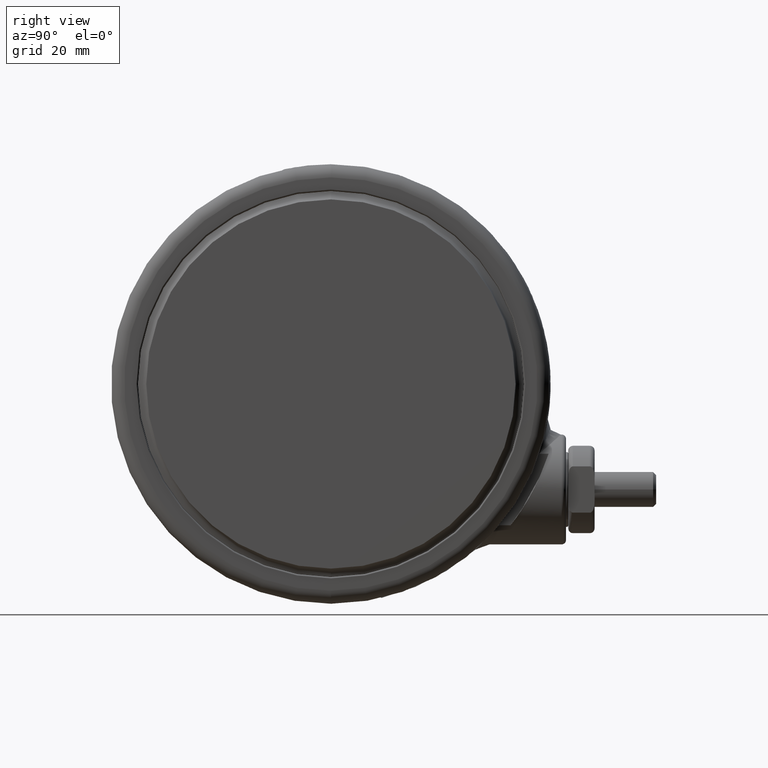
[diagram: clean part render]
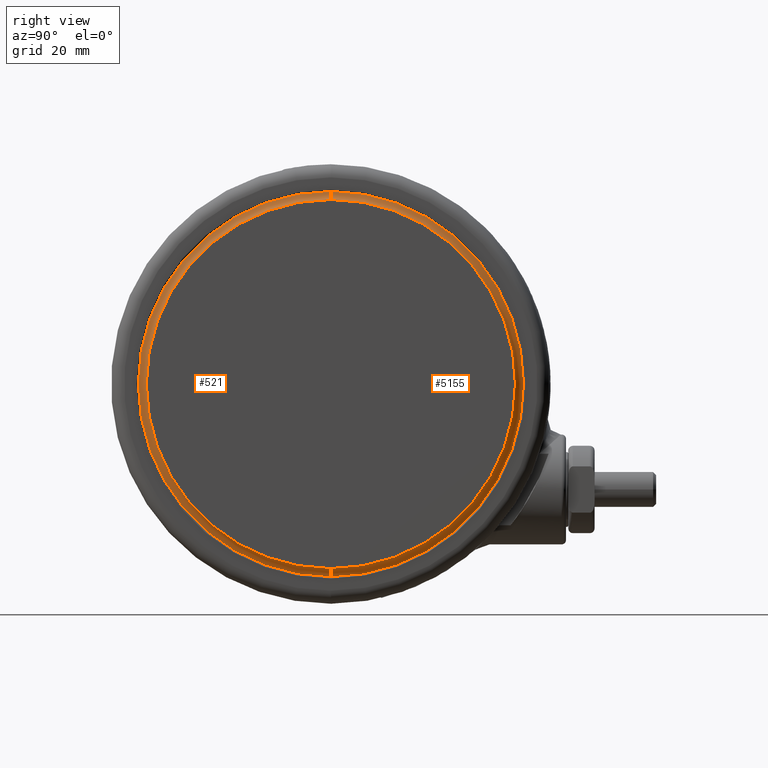
[diagram: same view with one multi-face feature highlighted, each face labeled with its STEP entity id]
A machine part, right view. The highlighted faces form ONE feature: a constant-radius fillet chain: 2 tangent blend faces with common blend radius 2.0507 mm. The faces share edges in the B-rep.
Their STEP definitions:
[1] entity #5155 (Torus):
#682 = CARTESIAN_POINT ( 'NONE',  ( 44.04999999999999700, 0.0000000000000000000, -0.05476190476190339500 ) ) ;
#1034 = CARTESIAN_POINT ( 'NONE',  ( -43.81162395316311400, 5.365376503968872300E-015, -2.091591727423864900 ) ) ;
#1408 = ORIENTED_EDGE ( 'NONE', *, *, #16114, .T. ) ;
#1436 = CARTESIAN_POINT ( 'NONE',  ( -41.99926869965538100, 5.143426997956257600E-015, -0.05476190476190365100 ) ) ;
#2415 = EDGE_CURVE ( 'NONE', #20207, #15711, #18011, .T. ) ;
#3178 = DIRECTION ( 'NONE',  ( 0.0000000000000000000, 0.0000000000000000000, -1.000000000000000000 ) ) ;
#5060 = DIRECTION ( 'NONE',  ( 1.224646799147353200E-016, 1.000000000000000000, -0.0000000000000000000 ) ) ;
#5155 = ADVANCED_FACE ( 'NONE', ( #7662 ), #20170, .F. ) ;
#5406 = EDGE_CURVE ( 'NONE', #24774, #20207, #26435, .T. ) ;
#5913 = ORIENTED_EDGE ( 'NONE', *, *, #5406, .F. ) ;
#7662 = FACE_OUTER_BOUND ( 'NONE', #15532, .T. ) ;
#9027 = CARTESIAN_POINT ( 'NONE',  ( 43.81162395316311400, 0.0000000000000000000, -2.091591727423864900 ) ) ;
#9128 = EDGE_CURVE ( 'NONE', #9926, #15711, #16828, .T. ) ;
#9159 = DIRECTION ( 'NONE',  ( 1.000000000000000000, 0.0000000000000000000, 0.0000000000000000000 ) ) ;
#9926 = VERTEX_POINT ( 'NONE', #9027 ) ;
#13565 = CARTESIAN_POINT ( 'NONE',  ( 0.0000000000000000000, 0.0000000000000000000, -2.091591727423864900 ) ) ;
#14105 = DIRECTION ( 'NONE',  ( 0.0000000000000000000, 0.0000000000000000000, 1.000000000000000000 ) ) ;
#14435 = DIRECTION ( 'NONE',  ( -1.000000000000000000, 1.224646799147356900E-016, 0.0000000000000000000 ) ) ;
#14438 = CARTESIAN_POINT ( 'NONE',  ( 0.0000000000000000000, 0.0000000000000000000, -0.05476190476190365100 ) ) ;
#15532 = EDGE_LOOP ( 'NONE', ( #5913, #1408, #26143, #16050 ) ) ;
#15711 = VERTEX_POINT ( 'NONE', #1034 ) ;
#16050 = ORIENTED_EDGE ( 'NONE', *, *, #2415, .F. ) ;
#16077 = DIRECTION ( 'NONE',  ( 1.000000000000000000, 0.0000000000000000000, 0.0000000000000000000 ) ) ;
#16114 = EDGE_CURVE ( 'NONE', #24774, #9926, #23764, .T. ) ;
#16828 = CIRCLE ( 'NONE', #19995, 43.81162395321010200 ) ;
#16941 = DIRECTION ( 'NONE',  ( 1.000000000000000000, 0.0000000000000000000, 0.0000000000000000000 ) ) ;
#18011 = CIRCLE ( 'NONE', #25339, 2.050731300344617500 ) ;
#18151 = DIRECTION ( 'NONE',  ( 0.0000000000000000000, -1.000000000000000000, 0.0000000000000000000 ) ) ;
#19995 = AXIS2_PLACEMENT_3D ( 'NONE', #13565, #31029, #16077 ) ;
#20013 = CARTESIAN_POINT ( 'NONE',  ( -44.04999999999999700, 5.394569150244090700E-015, -0.05476190476190339500 ) ) ;
#20170 = TOROIDAL_SURFACE ( 'NONE', #30813, 44.04999999999999700, 2.050731300344620100 ) ;
#20207 = VERTEX_POINT ( 'NONE', #1436 ) ;
#23764 = CIRCLE ( 'NONE', #26499, 2.050731300344620100 ) ;
#24140 = CARTESIAN_POINT ( 'NONE',  ( 0.0000000000000000000, 0.0000000000000000000, -0.05476190476190339500 ) ) ;
#24774 = VERTEX_POINT ( 'NONE', #29577 ) ;
#25339 = AXIS2_PLACEMENT_3D ( 'NONE', #20013, #5060, #14435 ) ;
#26143 = ORIENTED_EDGE ( 'NONE', *, *, #9128, .T. ) ;
#26435 = CIRCLE ( 'NONE', #26857, 41.99926869965538100 ) ;
#26499 = AXIS2_PLACEMENT_3D ( 'NONE', #682, #18151, #3178 ) ;
#26857 = AXIS2_PLACEMENT_3D ( 'NONE', #14438, #31890, #16941 ) ;
#29577 = CARTESIAN_POINT ( 'NONE',  ( 41.99926869965538100, 0.0000000000000000000, -0.05476190476190365100 ) ) ;
#30813 = AXIS2_PLACEMENT_3D ( 'NONE', #24140, #14105, #9159 ) ;
#31029 = DIRECTION ( 'NONE',  ( 0.0000000000000000000, 0.0000000000000000000, 1.000000000000000000 ) ) ;
#31890 = DIRECTION ( 'NONE',  ( 0.0000000000000000000, 0.0000000000000000000, 1.000000000000000000 ) ) ;
[2] entity #521 (Torus):
#521 = ADVANCED_FACE ( 'NONE', ( #9667 ), #15545, .F. ) ;
#682 = CARTESIAN_POINT ( 'NONE',  ( 44.04999999999999700, 0.0000000000000000000, -0.05476190476190339500 ) ) ;
#941 = DIRECTION ( 'NONE',  ( 0.0000000000000000000, 0.0000000000000000000, 1.000000000000000000 ) ) ;
#1034 = CARTESIAN_POINT ( 'NONE',  ( -43.81162395316311400, 5.365376503968872300E-015, -2.091591727423864900 ) ) ;
#1436 = CARTESIAN_POINT ( 'NONE',  ( -41.99926869965538100, 5.143426997956257600E-015, -0.05476190476190365100 ) ) ;
#1498 = DIRECTION ( 'NONE',  ( 1.000000000000000000, 0.0000000000000000000, 0.0000000000000000000 ) ) ;
#2000 = CIRCLE ( 'NONE', #5161, 43.81162395321010200 ) ;
#2415 = EDGE_CURVE ( 'NONE', #20207, #15711, #18011, .T. ) ;
#3178 = DIRECTION ( 'NONE',  ( 0.0000000000000000000, 0.0000000000000000000, -1.000000000000000000 ) ) ;
#3786 = DIRECTION ( 'NONE',  ( 0.0000000000000000000, 0.0000000000000000000, 1.000000000000000000 ) ) ;
#5060 = DIRECTION ( 'NONE',  ( 1.224646799147353200E-016, 1.000000000000000000, -0.0000000000000000000 ) ) ;
#5161 = AXIS2_PLACEMENT_3D ( 'NONE', #15892, #941, #18394 ) ;
#6465 = ORIENTED_EDGE ( 'NONE', *, *, #16114, .F. ) ;
#9027 = CARTESIAN_POINT ( 'NONE',  ( 43.81162395316311400, 0.0000000000000000000, -2.091591727423864900 ) ) ;
#9667 = FACE_OUTER_BOUND ( 'NONE', #19301, .T. ) ;
#9926 = VERTEX_POINT ( 'NONE', #9027 ) ;
#10301 = DIRECTION ( 'NONE',  ( 0.0000000000000000000, 0.0000000000000000000, 1.000000000000000000 ) ) ;
#13149 = CIRCLE ( 'NONE', #19104, 41.99926869965538100 ) ;
#14435 = DIRECTION ( 'NONE',  ( -1.000000000000000000, 1.224646799147356900E-016, 0.0000000000000000000 ) ) ;
#15545 = TOROIDAL_SURFACE ( 'NONE', #31951, 44.04999999999999700, 2.050731300344620100 ) ;
#15711 = VERTEX_POINT ( 'NONE', #1034 ) ;
#15892 = CARTESIAN_POINT ( 'NONE',  ( 0.0000000000000000000, 0.0000000000000000000, -2.091591727423864900 ) ) ;
#16114 = EDGE_CURVE ( 'NONE', #24774, #9926, #23764, .T. ) ;
#16443 = CARTESIAN_POINT ( 'NONE',  ( 0.0000000000000000000, 0.0000000000000000000, -0.05476190476190339500 ) ) ;
#18011 = CIRCLE ( 'NONE', #25339, 2.050731300344617500 ) ;
#18151 = DIRECTION ( 'NONE',  ( 0.0000000000000000000, -1.000000000000000000, 0.0000000000000000000 ) ) ;
#18394 = DIRECTION ( 'NONE',  ( 1.000000000000000000, 0.0000000000000000000, 0.0000000000000000000 ) ) ;
#19104 = AXIS2_PLACEMENT_3D ( 'NONE', #25288, #10301, #27803 ) ;
#19301 = EDGE_LOOP ( 'NONE', ( #19489, #23135, #23504, #6465 ) ) ;
#19489 = ORIENTED_EDGE ( 'NONE', *, *, #23076, .F. ) ;
#20013 = CARTESIAN_POINT ( 'NONE',  ( -44.04999999999999700, 5.394569150244090700E-015, -0.05476190476190339500 ) ) ;
#20207 = VERTEX_POINT ( 'NONE', #1436 ) ;
#23076 = EDGE_CURVE ( 'NONE', #20207, #24774, #13149, .T. ) ;
#23135 = ORIENTED_EDGE ( 'NONE', *, *, #2415, .T. ) ;
#23504 = ORIENTED_EDGE ( 'NONE', *, *, #27159, .T. ) ;
#23764 = CIRCLE ( 'NONE', #26499, 2.050731300344620100 ) ;
#24774 = VERTEX_POINT ( 'NONE', #29577 ) ;
#25288 = CARTESIAN_POINT ( 'NONE',  ( 0.0000000000000000000, 0.0000000000000000000, -0.05476190476190365100 ) ) ;
#25339 = AXIS2_PLACEMENT_3D ( 'NONE', #20013, #5060, #14435 ) ;
#26499 = AXIS2_PLACEMENT_3D ( 'NONE', #682, #18151, #3178 ) ;
#27159 = EDGE_CURVE ( 'NONE', #15711, #9926, #2000, .T. ) ;
#27803 = DIRECTION ( 'NONE',  ( 1.000000000000000000, 0.0000000000000000000, 0.0000000000000000000 ) ) ;
#29577 = CARTESIAN_POINT ( 'NONE',  ( 41.99926869965538100, 0.0000000000000000000, -0.05476190476190365100 ) ) ;
#31951 = AXIS2_PLACEMENT_3D ( 'NONE', #16443, #3786, #1498 ) ;